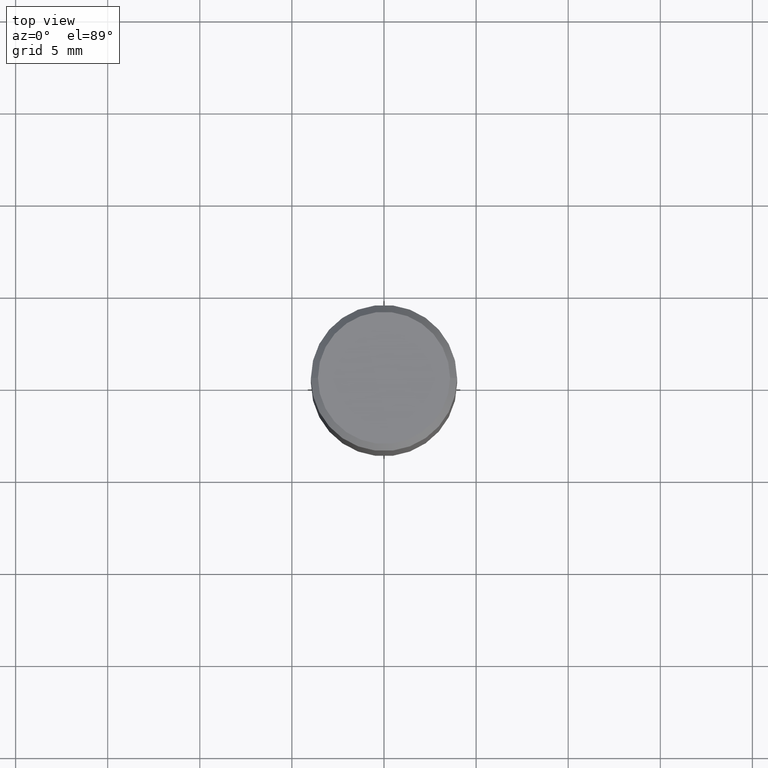
[diagram: clean part render]
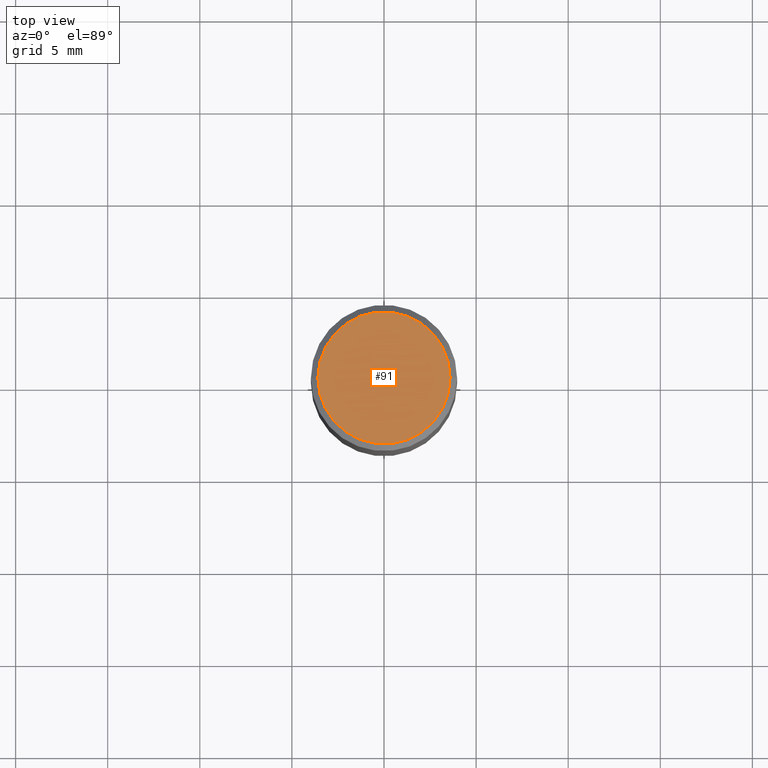
[diagram: same view with one face highlighted and labeled with its STEP entity id]
A machine part, top view. The second image highlights one B-rep face of the part: STEP entity #91.
In plain terms, the highlighted planar face has unit normal (0, -0, -1).
Its self-contained STEP definition (entity closure, byte-faithful):
#2 = CARTESIAN_POINT ( 'NONE',  ( -0.1412500000000000144, 1.012529588264508555E-15, -4.362760153143304915E-17 ) ) ;
#7 = DIRECTION ( 'NONE',  ( -2.445468806185136597E-29, 3.491481338843145583E-15, 1.000000000000000000 ) ) ;
#18 = EDGE_CURVE ( 'NONE', #365, #278, #123, .T. ) ;
#24 = ORIENTED_EDGE ( 'NONE', *, *, #18, .T. ) ;
#39 = CARTESIAN_POINT ( 'NONE',  ( 1.066899386337773103E-45, -1.523249566054587316E-31, -4.362760153142606033E-17 ) ) ;
#56 = AXIS2_PLACEMENT_3D ( 'NONE', #158, #334, #443 ) ;
#66 = AXIS2_PLACEMENT_3D ( 'NONE', #82, #7, #153 ) ;
#67 = CIRCLE ( 'NONE', #270, 0.1412500000000000144 ) ;
#82 = CARTESIAN_POINT ( 'NONE',  ( 1.066899386337773103E-45, -1.523249566054587316E-31, -4.362760153142606033E-17 ) ) ;
#91 = ADVANCED_FACE ( 'NONE', ( #154 ), #302, .F. ) ;
#123 = CIRCLE ( 'NONE', #66, 0.1412500000000000144 ) ;
#153 = DIRECTION ( 'NONE',  ( 1.000000000000000000, -6.982962677686265922E-15, 4.874209154772796007E-29 ) ) ;
#154 = FACE_OUTER_BOUND ( 'NONE', #226, .T. ) ;
#158 = CARTESIAN_POINT ( 'NONE',  ( 9.863434782231852123E-16, 0.1412500000000000144, -5.149855398773074051E-16 ) ) ;
#202 = CARTESIAN_POINT ( 'NONE',  ( 0.1412500000000000144, -1.046685187209839144E-15, -4.362760153141894826E-17 ) ) ;
#226 = EDGE_LOOP ( 'NONE', ( #300, #24 ) ) ;
#255 = DIRECTION ( 'NONE',  ( 1.000000000000000000, -6.982962677686265922E-15, 4.874209154772796007E-29 ) ) ;
#270 = AXIS2_PLACEMENT_3D ( 'NONE', #39, #394, #255 ) ;
#278 = VERTEX_POINT ( 'NONE', #2 ) ;
#300 = ORIENTED_EDGE ( 'NONE', *, *, #449, .T. ) ;
#302 = PLANE ( 'NONE',  #56 ) ;
#334 = DIRECTION ( 'NONE',  ( 2.438088387897960049E-29, -3.491481338843145188E-15, -1.000000000000000000 ) ) ;
#365 = VERTEX_POINT ( 'NONE', #202 ) ;
#394 = DIRECTION ( 'NONE',  ( -2.445468806185136597E-29, 3.491481338843145583E-15, 1.000000000000000000 ) ) ;
#443 = DIRECTION ( 'NONE',  ( -1.000000000000000000, 6.982962677686265922E-15, -4.876176775795935793E-29 ) ) ;
#449 = EDGE_CURVE ( 'NONE', #278, #365, #67, .T. ) ;